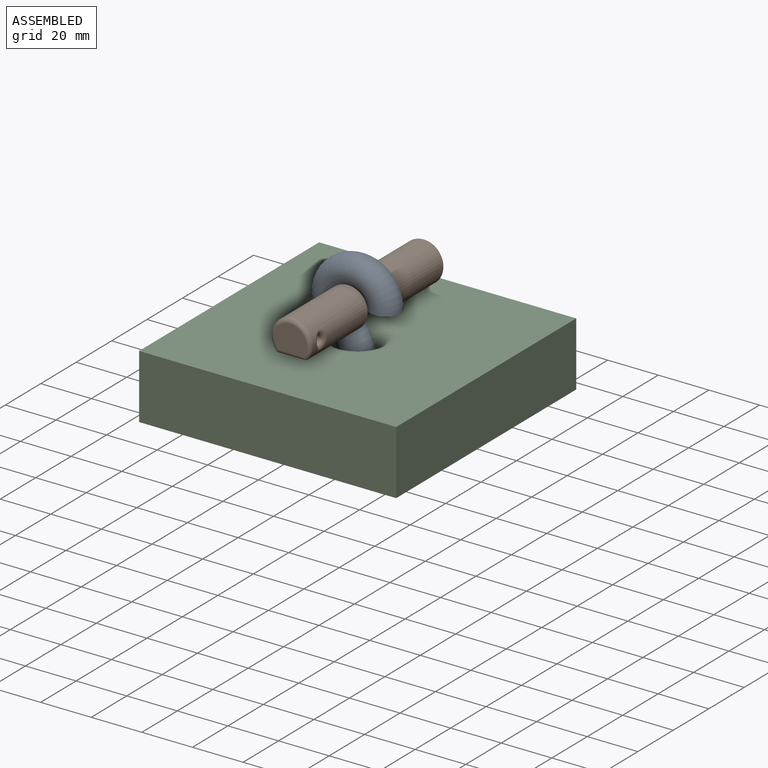
[diagram: assembled view]
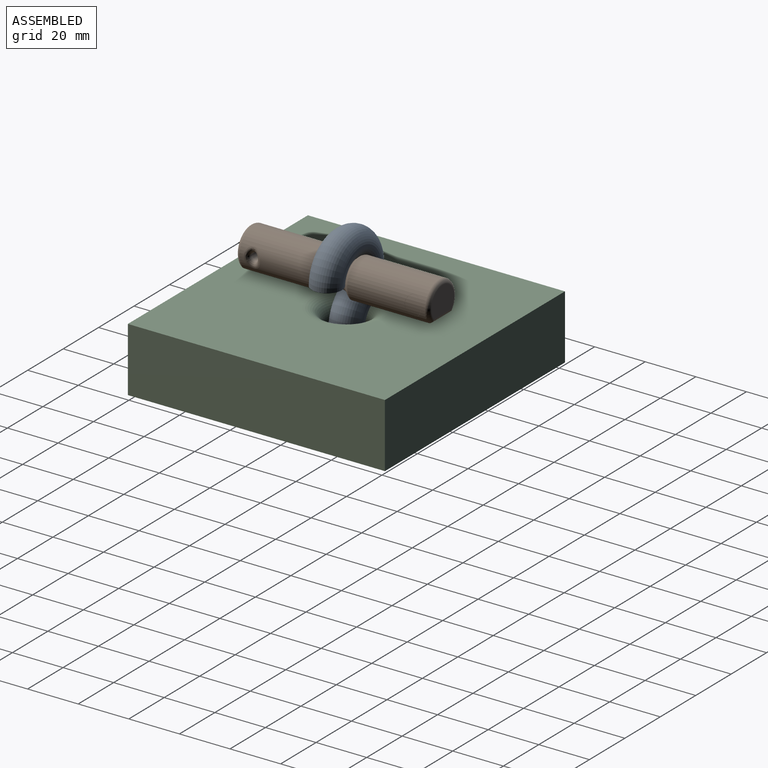
[diagram: assembled view, second angle]
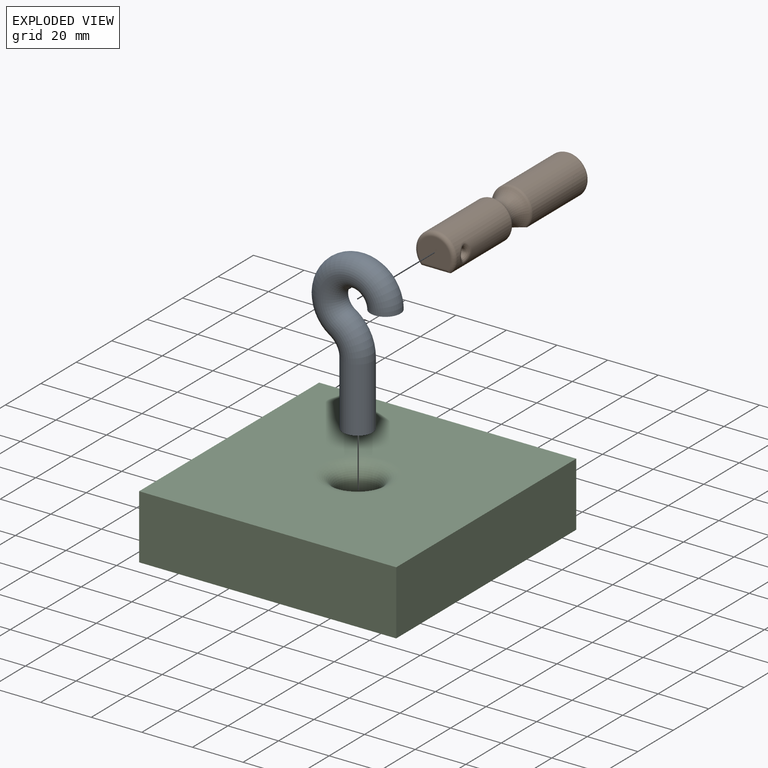
[diagram: exploded view]
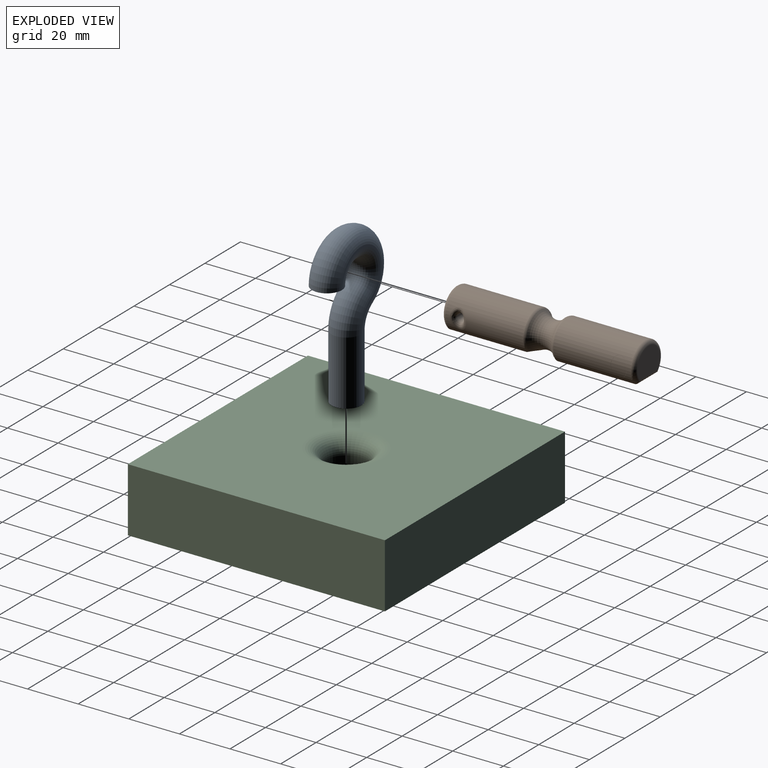
[diagram: exploded view, second angle]
ASSEMBLY  parts=3 mates=3
PART A: 5 faces, bbox 36.6x11.8x63.7 mm
  f0: plane 11.81x11.81mm, normal (0,0,-1), area 109.5mm2, adj f2
  f1: plane 11.81x11.81mm, normal (0,0,-1), area 109.5mm2, adj f4
  f2: cylinder r=5.9mm len=25.4mm, axis (0,0,1), area 942.2mm2, adj f0,f3
  f3: torus R=12.7mm, axis (0,-1,0), area 473.4mm2, adj f2,f4
  f4: torus R=10.98mm, axis (0,1,0), area 1689.4mm2, adj f1,f3
PART B: 22 faces, bbox 24.7x76.2x24.7 mm
  f0: cylinder r=7.94mm len=30.41mm, axis (0,1,0), area 1055.6mm2, adj f1,f4,f5,f18,f19,f21
  f1: torus R=6.35mm, axis (0,-1,0), area 84.7mm2, adj f0,f2,f3
  f2: plane 12.7x10.38mm, normal (0,-1,0), area 110.8mm2, adj f1,f3
  f3: cylinder r=1.59mm len=11.23mm, axis (-1,0,0), area 26.2mm2, adj f1,f2,f4
  f4: plane 33.66x11.23mm, normal (0,0,-1), area 358.9mm2, adj f0,f3,f5
  f5: bspline ~14.22x4.79mm, area 16mm2, adj f0,f4,f6,f18
  f6: torus R=11.43mm, axis (0,-1,0), area 360.3mm2, adj f5,f7,f17,f18
  f7: bspline ~14.73x4.89mm, area 16mm2, adj f6,f8,f12,f17
  f8: plane 33.66x11.23mm, normal (0,0,-1), area 358.9mm2, adj f7,f9,f12
  f9: cylinder r=1.59mm len=11.23mm, axis (1,0,0), area 26.2mm2, adj f8,f10,f11
  f10: plane 12.7x10.38mm, normal (0,1,0), area 110.8mm2, adj f9,f11
  f11: torus R=6.35mm, axis (0,-1,0), area 84.7mm2, adj f9,f10,f12
  f12: cylinder r=7.94mm len=30.41mm, axis (0,1,0), area 1096.6mm2, adj f7,f8,f11,f13,f17
  f13: bspline ~7.95x6.36mm, area 43.1mm2, adj f12,f14
  f14: cylinder r=1.59mm len=11mm, axis (-1,0,0), area 109.7mm2, adj f13,f15
  f15: bspline ~7.95x6.36mm, area 43.1mm2, adj f14,f16
  f16: cylinder r=7.94mm len=7.94mm, axis (0,1,0), area 41mm2, adj f15
  f17: torus R=6.35mm, axis (0,1,0), area 49.6mm2, adj f6,f7,f12
  f18: torus R=6.35mm, axis (0,-1,0), area 49.6mm2, adj f0,f5,f6
  f19: bspline ~7.95x6.36mm, area 43.1mm2, adj f0,f20
  f20: cylinder r=1.59mm len=11mm, axis (-1,0,0), area 109.7mm2, adj f19,f21
  f21: bspline ~7.95x6.36mm, area 43.1mm2, adj f0,f20
PART C: 8 faces, bbox 101.6x101.6x25.4 mm
  f0: plane 101.6x25.4mm, normal (-1,0,0), area 2580.6mm2, adj f1,f3,f5,f6
  f1: plane 101.6x25.4mm, normal (0,-1,0), area 2580.6mm2, adj f0,f2,f5,f6
  f2: plane 101.6x25.4mm, normal (1,0,0), area 2580.6mm2, adj f1,f3,f5,f6
  f3: plane 101.6x25.4mm, normal (0,1,0), area 2580.6mm2, adj f0,f2,f5,f6
  f4: cylinder r=7.94mm len=19.05mm, axis (0,0,-1), area 950.1mm2, adj f6,f7
  f5: plane 101.6x101.6mm, normal (0,0,1), area 9681.3mm2, adj f0,f1,f2,f3,f7
  f6: plane 101.6x101.6mm, normal (0,0,-1), area 10124.6mm2, adj f0,f1,f2,f3,f4
  f7: torus R=14.29mm, axis (0,0,1), area 642.1mm2, adj f4,f5
PLACE A t=(38.31,32.78,40.81)mm
PLACE B t=(38.31,32.78,40.81)mm
PLACE C t=(-12.49,-18.02,3.37)mm
MATE cylindrical A.f2 <-> C.f4  axis (0,0,1) through (38.31,32.78,20.82)mm
MATE cylindrical B.f0 <-> A.f4  axis (0,-1,0) through (38.31,-3.73,40.81)mm
MATE planar B.f6 <-> A.f4  axis (0,-1,0) through (38.31,32.78,40.81)mm
